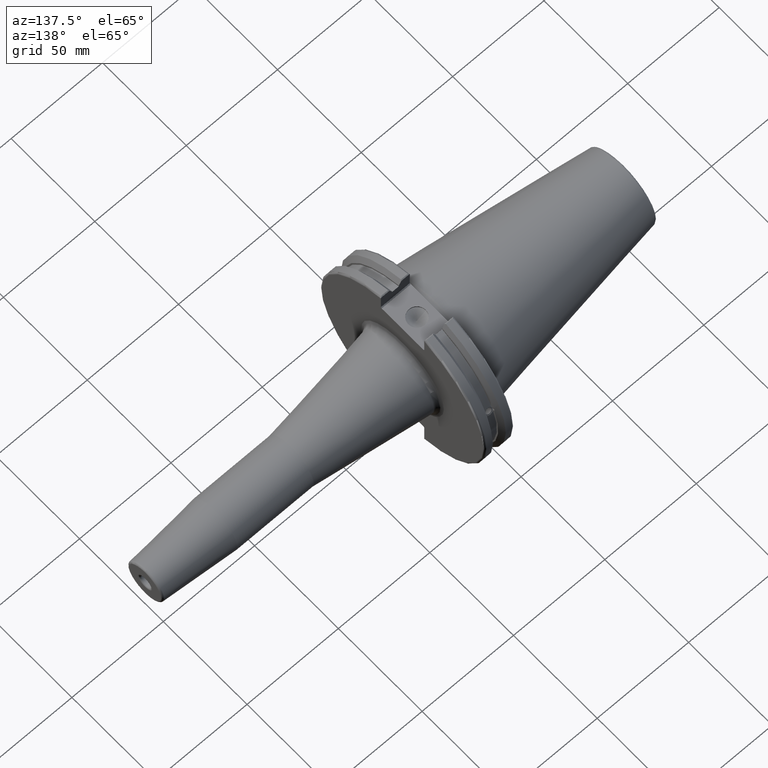
[diagram: clean part render]
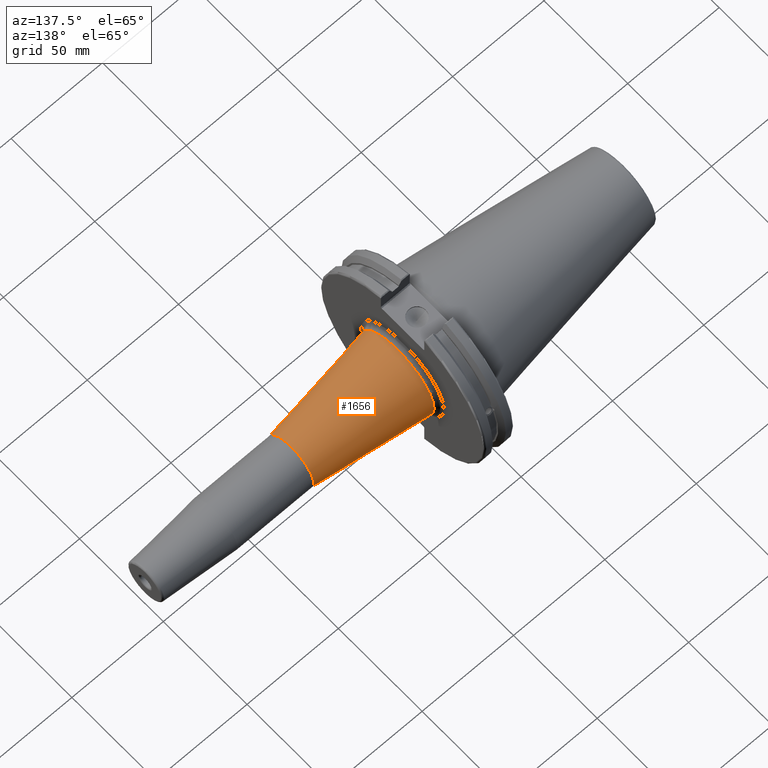
[diagram: same view with one face highlighted and labeled with its STEP entity id]
A machine part, auxiliary view. The second image highlights one B-rep face of the part: STEP entity #1656.
In plain terms, the highlighted conical surface has half-angle 8 deg.
Its self-contained STEP definition (entity closure, byte-faithful):
#101=LINE('',#2511,#196);
#196=VECTOR('',#2021,17.7829819375554);
#290=CONICAL_SURFACE('',#1784,17.7829819375554,0.139626340159547);
#367=FACE_OUTER_BOUND('',#457,.T.);
#457=EDGE_LOOP('',(#1151,#1152,#1153,#1154,#1155,#1156,#1157));
#572=CIRCLE('',#1778,21.7030198823347);
#576=CIRCLE('',#1782,21.7030198823347);
#577=CIRCLE('',#1783,21.7030198823347);
#578=CIRCLE('',#1785,13.5);
#579=CIRCLE('',#1786,13.5);
#681=VERTEX_POINT('',#2495);
#682=VERTEX_POINT('',#2496);
#685=VERTEX_POINT('',#2503);
#686=VERTEX_POINT('',#2507);
#687=VERTEX_POINT('',#2508);
#870=EDGE_CURVE('',#681,#682,#572,.T.);
#874=EDGE_CURVE('',#682,#685,#576,.T.);
#875=EDGE_CURVE('',#685,#681,#577,.T.);
#876=EDGE_CURVE('',#686,#687,#578,.T.);
#877=EDGE_CURVE('',#687,#686,#579,.T.);
#878=EDGE_CURVE('',#687,#685,#101,.T.);
#1151=ORIENTED_EDGE('',*,*,#876,.F.);
#1152=ORIENTED_EDGE('',*,*,#877,.F.);
#1153=ORIENTED_EDGE('',*,*,#878,.T.);
#1154=ORIENTED_EDGE('',*,*,#874,.F.);
#1155=ORIENTED_EDGE('',*,*,#870,.F.);
#1156=ORIENTED_EDGE('',*,*,#875,.F.);
#1157=ORIENTED_EDGE('',*,*,#878,.F.);
#1656=ADVANCED_FACE('',(#367),#290,.T.);
#1778=AXIS2_PLACEMENT_3D('',#2497,#2003,#2004);
#1782=AXIS2_PLACEMENT_3D('',#2504,#2011,#2012);
#1783=AXIS2_PLACEMENT_3D('',#2505,#2013,#2014);
#1784=AXIS2_PLACEMENT_3D('',#2506,#2015,#2016);
#1785=AXIS2_PLACEMENT_3D('',#2509,#2017,#2018);
#1786=AXIS2_PLACEMENT_3D('',#2510,#2019,#2020);
#2003=DIRECTION('center_axis',(-1.,0.,0.));
#2004=DIRECTION('ref_axis',(0.,-1.,-1.22464679914735E-16));
#2011=DIRECTION('center_axis',(-1.,0.,0.));
#2012=DIRECTION('ref_axis',(0.,-1.,-1.22464679914735E-16));
#2013=DIRECTION('center_axis',(-1.,0.,0.));
#2014=DIRECTION('ref_axis',(0.,-1.,-1.22464679914735E-16));
#2015=DIRECTION('center_axis',(-1.,0.,0.));
#2016=DIRECTION('ref_axis',(0.,1.,0.));
#2017=DIRECTION('center_axis',(1.,0.,0.));
#2018=DIRECTION('ref_axis',(0.,0.,-1.));
#2019=DIRECTION('center_axis',(1.,0.,0.));
#2020=DIRECTION('ref_axis',(0.,0.,-1.));
#2021=DIRECTION('',(-0.99026806874157,-0.139173100960066,-1.70437892618156E-17));
#2495=CARTESIAN_POINT('',(21.6324806971198,21.7030198823347,4.93038065763132E-31));
#2496=CARTESIAN_POINT('',(21.6324806971198,-2.65785338307326E-15,-21.7030198823347));
#2497=CARTESIAN_POINT('Origin',(21.6324806971198,0.,0.));
#2503=CARTESIAN_POINT('',(21.6324806971198,-21.7030198823347,-2.65785338307326E-15));
#2504=CARTESIAN_POINT('Origin',(21.6324806971198,0.,0.));
#2505=CARTESIAN_POINT('Origin',(21.6324806971198,0.,0.));
#2506=CARTESIAN_POINT('Origin',(49.525,0.,0.));
#2507=CARTESIAN_POINT('',(80.,13.5,0.));
#2508=CARTESIAN_POINT('',(80.,-13.5,-1.65327317884893E-15));
#2509=CARTESIAN_POINT('Origin',(80.,0.,0.));
#2510=CARTESIAN_POINT('Origin',(80.,0.,0.));
#2511=CARTESIAN_POINT('',(49.525,-17.7829819375554,-2.17778719091224E-15));